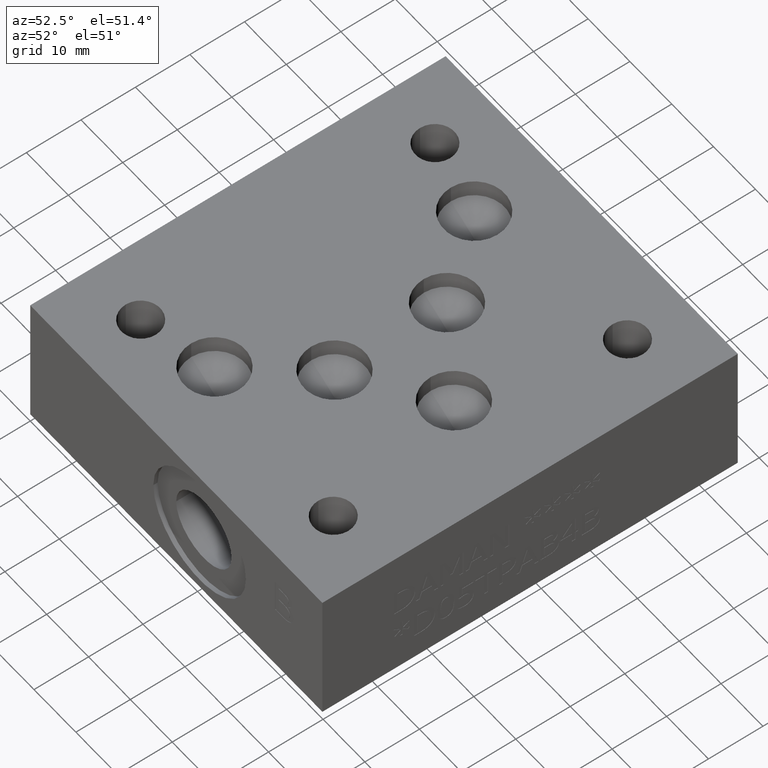
[diagram: clean part render]
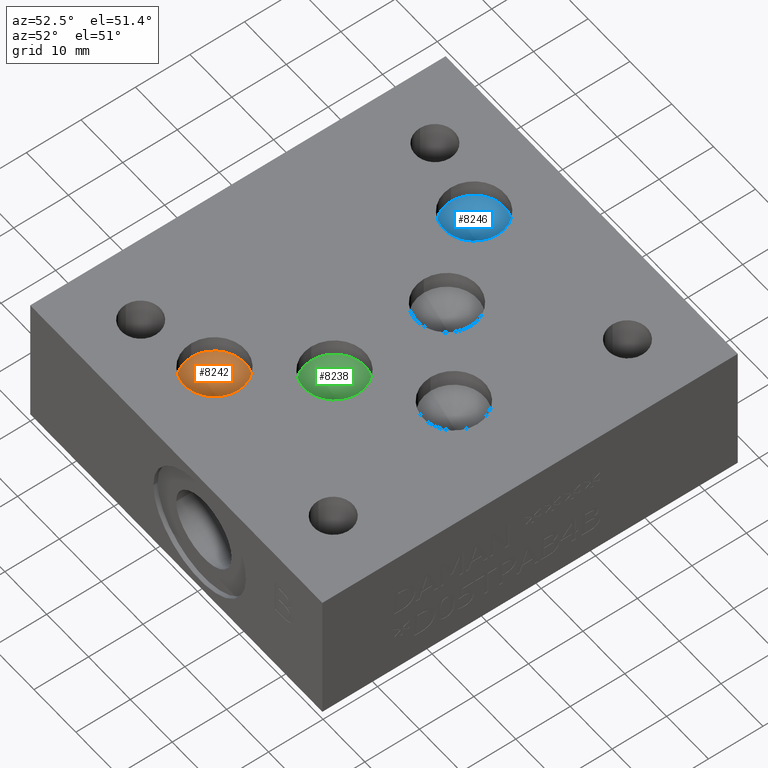
[diagram: same view with three faces highlighted in distinct colors, each labeled with its STEP entity id]
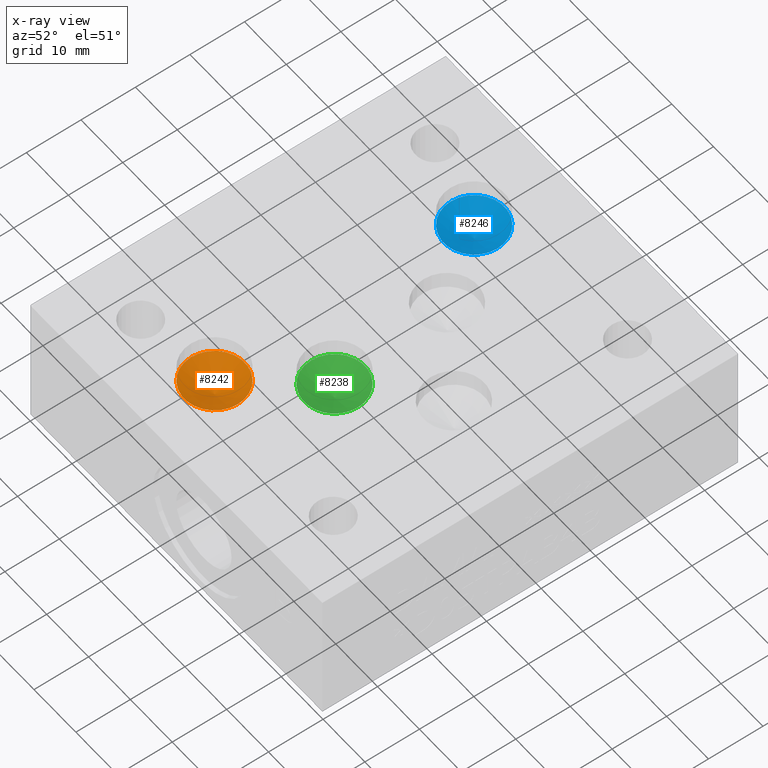
[diagram: x-ray of the same camera — body ghosted, the three highlighted faces saturated]
A machine part, auxiliary view with three faces highlighted in distinct colors.
The next image is the same camera in x-ray (body ghosted, the three faces saturated) — at least one of them is partly hidden behind the body in this view.
Their STEP definitions:

[orange] entity #8242 — the highlighted conical surface has half-angle 60 deg.
#60=CONICAL_SURFACE('',#8655,2.778125,1.0471975511966);
#123=CIRCLE('',#8656,5.55625);
#897=FACE_OUTER_BOUND('',#1380,.T.);
#1380=EDGE_LOOP('',(#7335,#7336,#7337));
#2253=LINE('',#13858,#3113);
#3113=VECTOR('',#10301,2.778125);
#4041=VERTEX_POINT('',#13855);
#4042=VERTEX_POINT('',#13857);
#5149=EDGE_CURVE('',#4041,#4041,#123,.T.);
#5150=EDGE_CURVE('',#4041,#4042,#2253,.T.);
#7335=ORIENTED_EDGE('',*,*,#5149,.T.);
#7336=ORIENTED_EDGE('',*,*,#5150,.T.);
#7337=ORIENTED_EDGE('',*,*,#5150,.F.);
#8242=ADVANCED_FACE('',(#897),#60,.F.);
#8655=AXIS2_PLACEMENT_3D('',#13854,#10297,#10298);
#8656=AXIS2_PLACEMENT_3D('',#13856,#10299,#10300);
#10297=DIRECTION('center_axis',(0.,0.,1.));
#10298=DIRECTION('ref_axis',(1.,0.,0.));
#10299=DIRECTION('center_axis',(0.,0.,1.));
#10300=DIRECTION('ref_axis',(1.,0.,0.));
#10301=DIRECTION('',(0.866025403784439,1.06057523872491E-16,-0.5));
#13854=CARTESIAN_POINT('Origin',(25.43302,14.2875,20.5881487834076));
#13855=CARTESIAN_POINT('',(19.87677,14.2875,22.1921));
#13856=CARTESIAN_POINT('Origin',(25.43302,14.2875,22.1921));
#13857=CARTESIAN_POINT('',(25.43302,14.2875,18.9841975668151));
#13858=CARTESIAN_POINT('',(22.654895,14.2875,20.5881487834076));

[blue] entity #8246 — the highlighted conical surface has half-angle 60 deg.
#62=CONICAL_SURFACE('',#8663,2.7813,1.0471975511966);
#127=CIRCLE('',#8664,5.5626);
#901=FACE_OUTER_BOUND('',#1384,.T.);
#1384=EDGE_LOOP('',(#7349,#7350,#7351));
#2257=LINE('',#13876,#3117);
#3117=VECTOR('',#10321,2.7813);
#4047=VERTEX_POINT('',#13873);
#4048=VERTEX_POINT('',#13875);
#5157=EDGE_CURVE('',#4047,#4047,#127,.T.);
#5158=EDGE_CURVE('',#4047,#4048,#2257,.T.);
#7349=ORIENTED_EDGE('',*,*,#5157,.T.);
#7350=ORIENTED_EDGE('',*,*,#5158,.T.);
#7351=ORIENTED_EDGE('',*,*,#5158,.F.);
#8246=ADVANCED_FACE('',(#901),#62,.F.);
#8663=AXIS2_PLACEMENT_3D('',#13872,#10317,#10318);
#8664=AXIS2_PLACEMENT_3D('',#13874,#10319,#10320);
#10317=DIRECTION('center_axis',(0.,0.,1.));
#10318=DIRECTION('ref_axis',(1.,0.,0.));
#10319=DIRECTION('center_axis',(0.,0.,1.));
#10320=DIRECTION('ref_axis',(1.,0.,0.));
#10321=DIRECTION('',(0.866025403784439,1.06057523872491E-16,-0.5));
#13872=CARTESIAN_POINT('Origin',(25.4254,61.9252,20.5826456963029));
#13873=CARTESIAN_POINT('',(19.8628,61.9252,22.18843));
#13874=CARTESIAN_POINT('Origin',(25.4254,61.9252,22.18843));
#13875=CARTESIAN_POINT('',(25.4254,61.9252,18.9768613926058));
#13876=CARTESIAN_POINT('',(22.6441,61.9252,20.5826456963029));

[green] entity #8238 — the highlighted conical surface has half-angle 60 deg.
#58=CONICAL_SURFACE('',#8647,2.778125,1.0471975511966);
#119=CIRCLE('',#8648,5.55625);
#893=FACE_OUTER_BOUND('',#1376,.T.);
#1376=EDGE_LOOP('',(#7321,#7322,#7323));
#2249=LINE('',#13840,#3109);
#3109=VECTOR('',#10281,2.778125);
#4035=VERTEX_POINT('',#13837);
#4036=VERTEX_POINT('',#13839);
#5141=EDGE_CURVE('',#4035,#4035,#119,.T.);
#5142=EDGE_CURVE('',#4035,#4036,#2249,.T.);
#7321=ORIENTED_EDGE('',*,*,#5141,.T.);
#7322=ORIENTED_EDGE('',*,*,#5142,.T.);
#7323=ORIENTED_EDGE('',*,*,#5142,.F.);
#8238=ADVANCED_FACE('',(#893),#58,.F.);
#8647=AXIS2_PLACEMENT_3D('',#13836,#10277,#10278);
#8648=AXIS2_PLACEMENT_3D('',#13838,#10279,#10280);
#10277=DIRECTION('center_axis',(0.,0.,1.));
#10278=DIRECTION('ref_axis',(1.,0.,0.));
#10279=DIRECTION('center_axis',(0.,0.,1.));
#10280=DIRECTION('ref_axis',(1.,0.,0.));
#10281=DIRECTION('',(0.866025403784439,1.06057523872491E-16,-0.5));
#13836=CARTESIAN_POINT('Origin',(36.54298,27.78252,20.5881487834076));
#13837=CARTESIAN_POINT('',(30.98673,27.78252,22.1921));
#13838=CARTESIAN_POINT('Origin',(36.54298,27.78252,22.1921));
#13839=CARTESIAN_POINT('',(36.54298,27.78252,18.9841975668151));
#13840=CARTESIAN_POINT('',(33.764855,27.78252,20.5881487834076));